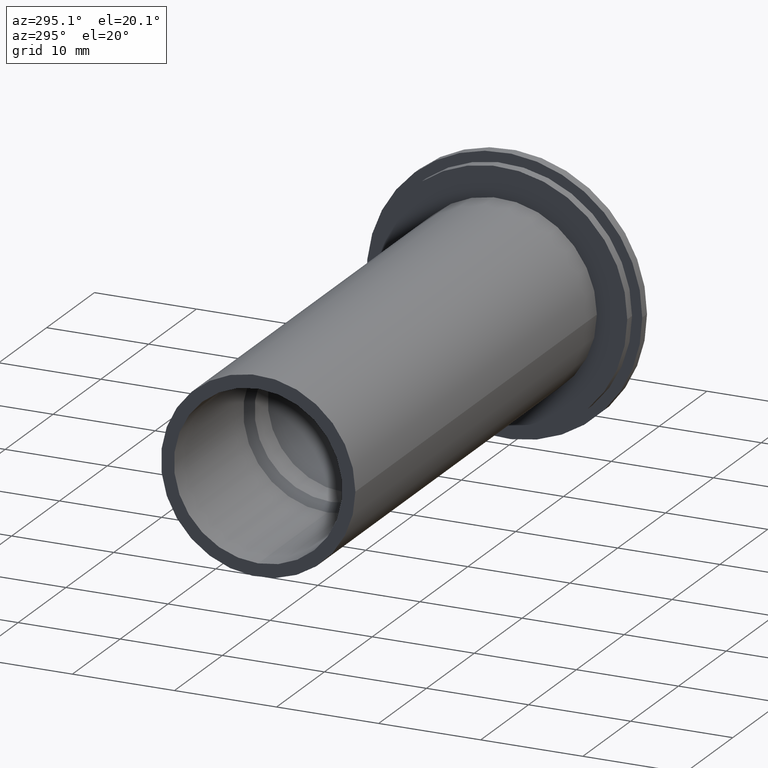
[diagram: clean part render]
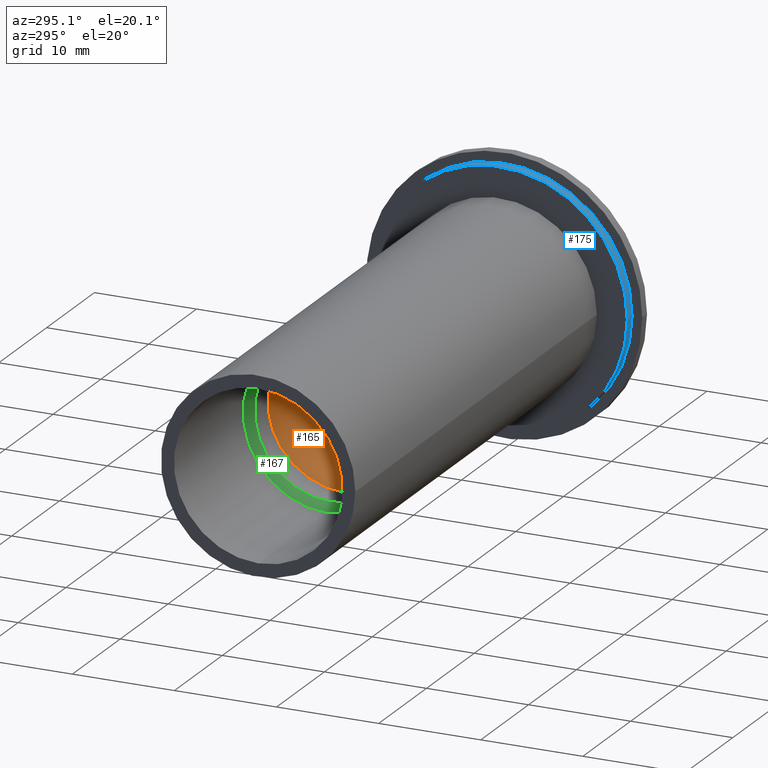
[diagram: same view with three faces highlighted in distinct colors, each labeled with its STEP entity id]
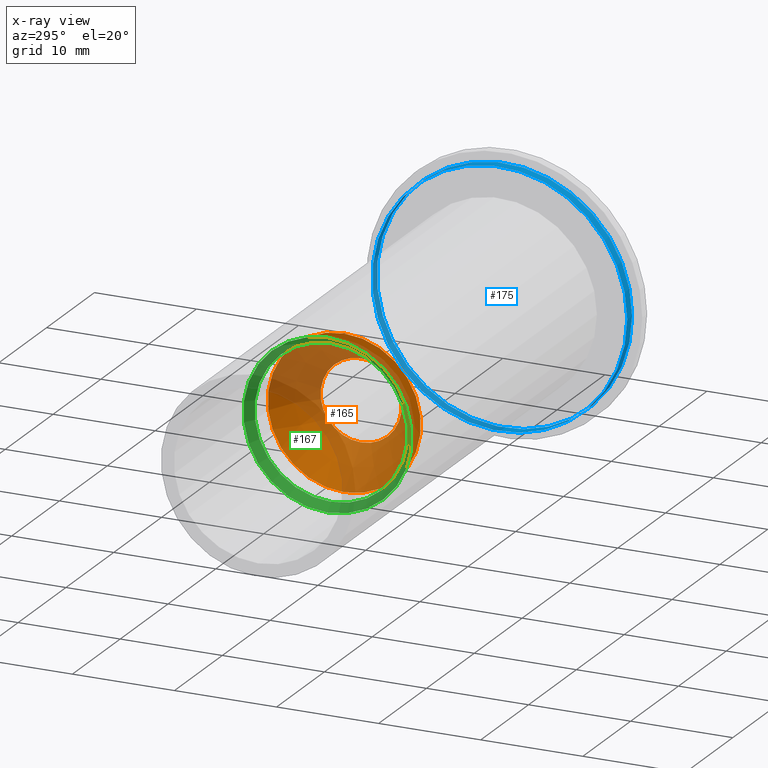
[diagram: x-ray of the same camera — body ghosted, the three highlighted faces saturated]
A machine part, auxiliary view with three faces highlighted in distinct colors.
The next image is the same camera in x-ray (body ghosted, the three faces saturated) — at least one of them is partly hidden behind the body in this view.
Their STEP definitions:

[orange] entity #165 — the highlighted conical surface has half-angle 45 deg.
#23=CONICAL_SURFACE('',#203,3.75,0.785398163397448);
#26=FACE_OUTER_BOUND('',#38,.T.);
#38=EDGE_LOOP('',(#121,#122,#123,#124,#125));
#54=LINE('',#296,#62);
#62=VECTOR('',#239,3.75);
#70=CIRCLE('',#201,3.96875);
#71=CIRCLE('',#202,3.96875);
#72=CIRCLE('',#204,7.5);
#83=VERTEX_POINT('',#288);
#84=VERTEX_POINT('',#290);
#85=VERTEX_POINT('',#294);
#97=EDGE_CURVE('',#84,#83,#70,.T.);
#98=EDGE_CURVE('',#83,#84,#71,.T.);
#99=EDGE_CURVE('',#85,#85,#72,.T.);
#100=EDGE_CURVE('',#85,#84,#54,.T.);
#121=ORIENTED_EDGE('',*,*,#99,.T.);
#122=ORIENTED_EDGE('',*,*,#100,.T.);
#123=ORIENTED_EDGE('',*,*,#97,.T.);
#124=ORIENTED_EDGE('',*,*,#98,.T.);
#125=ORIENTED_EDGE('',*,*,#100,.F.);
#165=ADVANCED_FACE('',(#26),#23,.F.);
#201=AXIS2_PLACEMENT_3D('',#291,#231,#232);
#202=AXIS2_PLACEMENT_3D('',#292,#233,#234);
#203=AXIS2_PLACEMENT_3D('',#293,#235,#236);
#204=AXIS2_PLACEMENT_3D('',#295,#237,#238);
#231=DIRECTION('center_axis',(1.,0.,0.));
#232=DIRECTION('ref_axis',(0.,0.,-1.));
#233=DIRECTION('center_axis',(1.,0.,0.));
#234=DIRECTION('ref_axis',(0.,0.,-1.));
#235=DIRECTION('center_axis',(-1.,0.,0.));
#236=DIRECTION('ref_axis',(0.,0.,1.));
#237=DIRECTION('center_axis',(-1.,0.,0.));
#238=DIRECTION('ref_axis',(0.,0.,1.));
#239=DIRECTION('',(0.707106781186548,8.65956056235493E-17,0.707106781186547));
#288=CARTESIAN_POINT('',(-30.96875,-4.86031698411606E-16,3.96875));
#290=CARTESIAN_POINT('',(-30.96875,-4.86031698411606E-16,-3.96875));
#291=CARTESIAN_POINT('Origin',(-30.96875,0.,0.));
#292=CARTESIAN_POINT('Origin',(-30.96875,0.,0.));
#293=CARTESIAN_POINT('Origin',(-30.75,0.,0.));
#294=CARTESIAN_POINT('',(-34.5,-9.18485099360515E-16,-7.5));
#295=CARTESIAN_POINT('Origin',(-34.5,0.,0.));
#296=CARTESIAN_POINT('',(-30.75,-4.59242549680257E-16,-3.75));

[blue] entity #175 — the highlighted cylindrical surface (bore or boss wall) has radius 12.5 mm, axis along (1, 0, 0).
#36=FACE_OUTER_BOUND('',#52,.T.);
#52=EDGE_LOOP('',(#154,#155,#156,#157));
#60=LINE('',#330,#68);
#68=VECTOR('',#283,12.5);
#77=CIRCLE('',#213,12.5);
#81=CIRCLE('',#222,12.5);
#90=VERTEX_POINT('',#312);
#94=VERTEX_POINT('',#327);
#108=EDGE_CURVE('',#90,#90,#77,.T.);
#114=EDGE_CURVE('',#94,#94,#81,.T.);
#115=EDGE_CURVE('',#90,#94,#60,.T.);
#154=ORIENTED_EDGE('',*,*,#108,.F.);
#155=ORIENTED_EDGE('',*,*,#115,.T.);
#156=ORIENTED_EDGE('',*,*,#114,.T.);
#157=ORIENTED_EDGE('',*,*,#115,.F.);
#163=CYLINDRICAL_SURFACE('',#223,12.5);
#175=ADVANCED_FACE('',(#36),#163,.T.);
#213=AXIS2_PLACEMENT_3D('',#313,#259,#260);
#222=AXIS2_PLACEMENT_3D('',#328,#279,#280);
#223=AXIS2_PLACEMENT_3D('',#329,#281,#282);
#259=DIRECTION('center_axis',(1.,0.,0.));
#260=DIRECTION('ref_axis',(0.,0.,-1.));
#279=DIRECTION('center_axis',(1.,0.,0.));
#280=DIRECTION('ref_axis',(0.,0.,-1.));
#281=DIRECTION('center_axis',(1.,0.,0.));
#282=DIRECTION('ref_axis',(0.,1.,0.));
#283=DIRECTION('',(-1.,0.,0.));
#312=CARTESIAN_POINT('',(-0.999999999999996,-12.5,-1.53080849893419E-15));
#313=CARTESIAN_POINT('Origin',(-0.999999999999996,0.,0.));
#327=CARTESIAN_POINT('',(-2.,-12.5,-1.53080849893419E-15));
#328=CARTESIAN_POINT('Origin',(-2.,0.,0.));
#329=CARTESIAN_POINT('Origin',(-1.5,0.,0.));
#330=CARTESIAN_POINT('',(-1.5,-12.5,-1.53080849893419E-15));

[green] entity #167 — the highlighted conical surface has half-angle 45 deg.
#24=CONICAL_SURFACE('',#207,4.125,0.785398163397448);
#28=FACE_OUTER_BOUND('',#40,.T.);
#40=EDGE_LOOP('',(#130,#131,#132,#133));
#56=LINE('',#304,#64);
#64=VECTOR('',#249,4.125);
#73=CIRCLE('',#206,7.5);
#74=CIRCLE('',#208,8.25);
#86=VERTEX_POINT('',#298);
#87=VERTEX_POINT('',#302);
#101=EDGE_CURVE('',#86,#86,#73,.T.);
#103=EDGE_CURVE('',#87,#87,#74,.T.);
#104=EDGE_CURVE('',#87,#86,#56,.T.);
#130=ORIENTED_EDGE('',*,*,#103,.T.);
#131=ORIENTED_EDGE('',*,*,#104,.T.);
#132=ORIENTED_EDGE('',*,*,#101,.T.);
#133=ORIENTED_EDGE('',*,*,#104,.F.);
#167=ADVANCED_FACE('',(#28),#24,.F.);
#206=AXIS2_PLACEMENT_3D('',#299,#242,#243);
#207=AXIS2_PLACEMENT_3D('',#301,#245,#246);
#208=AXIS2_PLACEMENT_3D('',#303,#247,#248);
#242=DIRECTION('center_axis',(1.,0.,0.));
#243=DIRECTION('ref_axis',(0.,0.,1.));
#245=DIRECTION('center_axis',(-1.,0.,0.));
#246=DIRECTION('ref_axis',(0.,0.,1.));
#247=DIRECTION('center_axis',(-1.,0.,0.));
#248=DIRECTION('ref_axis',(0.,0.,1.));
#249=DIRECTION('',(0.707106781186548,8.65956056235493E-17,0.707106781186547));
#298=CARTESIAN_POINT('',(-37.25,9.18485099360515E-16,-7.5));
#299=CARTESIAN_POINT('Origin',(-37.25,0.,0.));
#301=CARTESIAN_POINT('Origin',(-33.875,0.,0.));
#302=CARTESIAN_POINT('',(-38.,-1.01033360929657E-15,-8.25));
#303=CARTESIAN_POINT('Origin',(-38.,0.,0.));
#304=CARTESIAN_POINT('',(-33.875,-5.05166804648283E-16,-4.125));